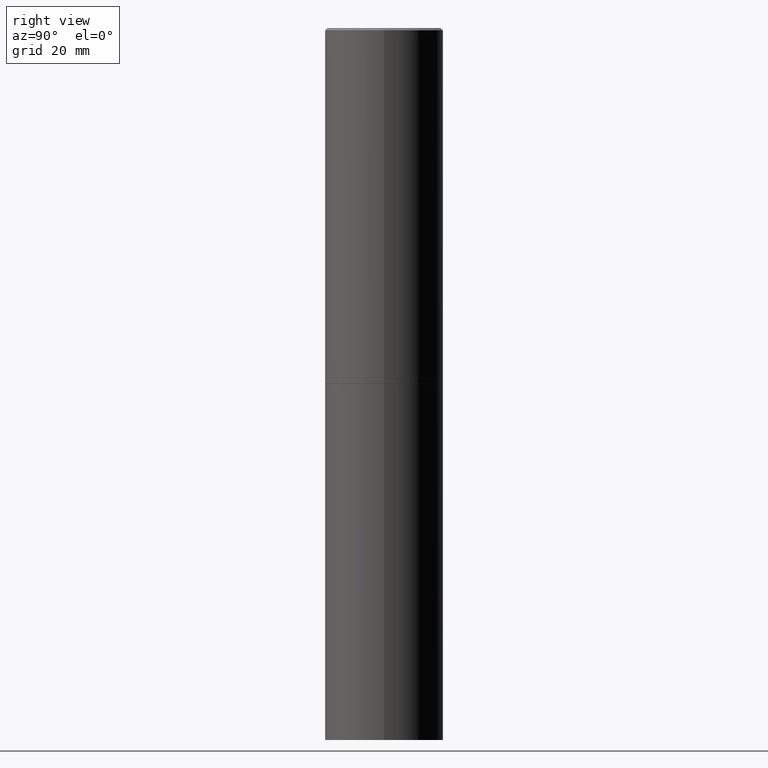
[diagram: clean part render]
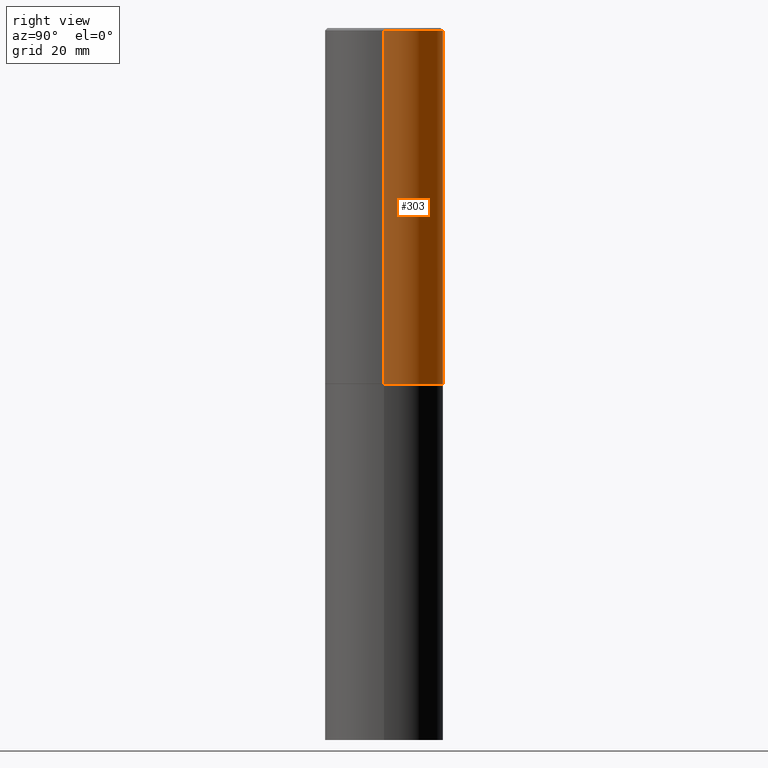
[diagram: same view with one face highlighted and labeled with its STEP entity id]
A machine part, right view. The second image highlights one B-rep face of the part: STEP entity #303.
In plain terms, the highlighted cylindrical surface (partial cylindrical patch) has radius 12.7 mm, axis along (-0, 0, 1).
Its self-contained STEP definition (entity closure, byte-faithful):
#7 = VECTOR ( 'NONE', #289, 39.37007874015748143 ) ;
#16 = CARTESIAN_POINT ( 'NONE',  ( -0.5000000000000000000, -1.717677402183225026E-15, -2.999000000000000554 ) ) ;
#20 = DIRECTION ( 'NONE',  ( -2.445468806185136597E-29, 3.491481338843145583E-15, 1.000000000000000000 ) ) ;
#22 = FACE_OUTER_BOUND ( 'NONE', #349, .T. ) ;
#25 = CARTESIAN_POINT ( 'NONE',  ( -0.4999999999999997780, 3.552713678800499352E-15, -2.459467545127452050E-29 ) ) ;
#40 = ORIENTED_EDGE ( 'NONE', *, *, #280, .F. ) ;
#45 = CARTESIAN_POINT ( 'NONE',  ( -0.4999999999999996114, 3.421651712066267296E-15, -0.02000000000000010797 ) ) ;
#50 = CYLINDRICAL_SURFACE ( 'NONE', #113, 0.4999999999999997780 ) ;
#51 = DIRECTION ( 'NONE',  ( -2.445468806185136877E-29, 3.491481338843145188E-15, 1.000000000000000000 ) ) ;
#57 = EDGE_CURVE ( 'NONE', #89, #109, #196, .T. ) ;
#78 = CARTESIAN_POINT ( 'NONE',  ( 0.000000000000000000, 0.000000000000000000, 0.000000000000000000 ) ) ;
#79 = VECTOR ( 'NONE', #51, 39.37007874015748143 ) ;
#89 = VERTEX_POINT ( 'NONE', #247 ) ;
#102 = LINE ( 'NONE', #25, #79 ) ;
#104 = LINE ( 'NONE', #339, #7 ) ;
#109 = VERTEX_POINT ( 'NONE', #45 ) ;
#113 = AXIS2_PLACEMENT_3D ( 'NONE', #78, #167, #192 ) ;
#137 = AXIS2_PLACEMENT_3D ( 'NONE', #356, #299, #333 ) ;
#148 = ORIENTED_EDGE ( 'NONE', *, *, #194, .T. ) ;
#167 = DIRECTION ( 'NONE',  ( -2.445468806185136597E-29, 3.491481338843145583E-15, 1.000000000000000000 ) ) ;
#181 = DIRECTION ( 'NONE',  ( 1.000000000000000000, -6.982962677686266711E-15, 0.000000000000000000 ) ) ;
#192 = DIRECTION ( 'NONE',  ( 1.000000000000000000, -6.982962677686266711E-15, 4.876176775795935793E-29 ) ) ;
#194 = EDGE_CURVE ( 'NONE', #322, #203, #324, .T. ) ;
#196 = CIRCLE ( 'NONE', #137, 0.4999999999999996114 ) ;
#203 = VERTEX_POINT ( 'NONE', #16 ) ;
#233 = EDGE_CURVE ( 'NONE', #203, #109, #102, .T. ) ;
#247 = CARTESIAN_POINT ( 'NONE',  ( 0.4999999999999996114, -3.500078625662626318E-15, -0.02000000000000010797 ) ) ;
#262 = ORIENTED_EDGE ( 'NONE', *, *, #57, .F. ) ;
#280 = EDGE_CURVE ( 'NONE', #322, #89, #104, .T. ) ;
#283 = AXIS2_PLACEMENT_3D ( 'NONE', #330, #20, #181 ) ;
#287 = CARTESIAN_POINT ( 'NONE',  ( 0.5000000000000000000, -1.396243387403372828E-14, -2.999000000000000554 ) ) ;
#289 = DIRECTION ( 'NONE',  ( -2.445468806185136877E-29, 3.491481338843145188E-15, 1.000000000000000000 ) ) ;
#291 = ORIENTED_EDGE ( 'NONE', *, *, #233, .T. ) ;
#299 = DIRECTION ( 'NONE',  ( -2.445468806185136597E-29, 3.491481338843145583E-15, 1.000000000000000000 ) ) ;
#303 = ADVANCED_FACE ( 'NONE', ( #22 ), #50, .T. ) ;
#322 = VERTEX_POINT ( 'NONE', #287 ) ;
#324 = CIRCLE ( 'NONE', #283, 0.5000000000000000000 ) ;
#330 = CARTESIAN_POINT ( 'NONE',  ( 7.333960949749226429E-29, -1.047095253519059492E-14, -2.999000000000000554 ) ) ;
#333 = DIRECTION ( 'NONE',  ( 1.000000000000000000, -6.982962677686266711E-15, 0.000000000000000000 ) ) ;
#339 = CARTESIAN_POINT ( 'NONE',  ( 0.4999999999999997780, -3.491481338843131778E-15, 2.438088387897966775E-29 ) ) ;
#349 = EDGE_LOOP ( 'NONE', ( #148, #291, #262, #40 ) ) ;
#356 = CARTESIAN_POINT ( 'NONE',  ( 4.890937612370299433E-31, -6.982962677686328587E-17, -0.02000000000000010797 ) ) ;